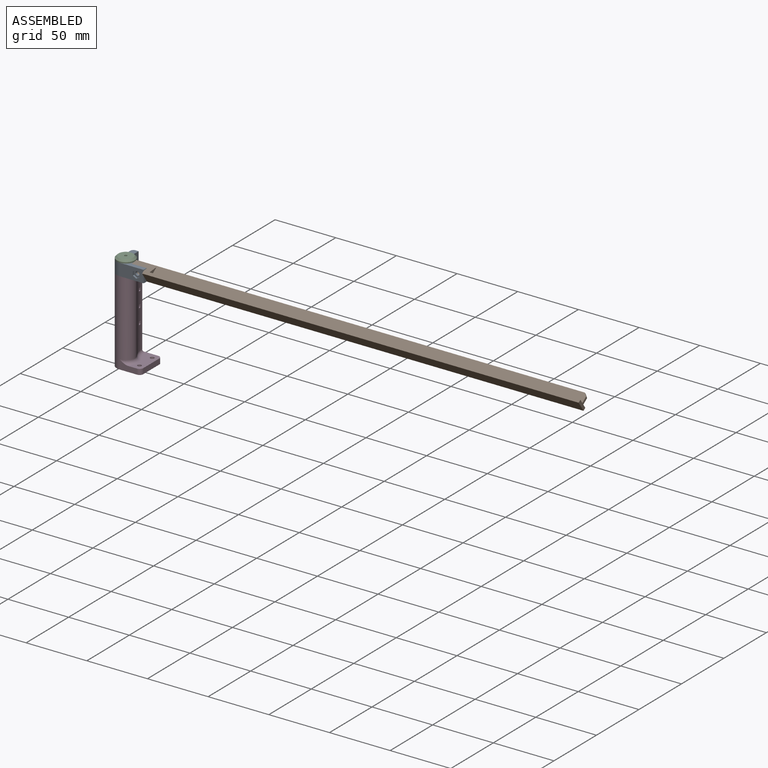
[diagram: assembled view]
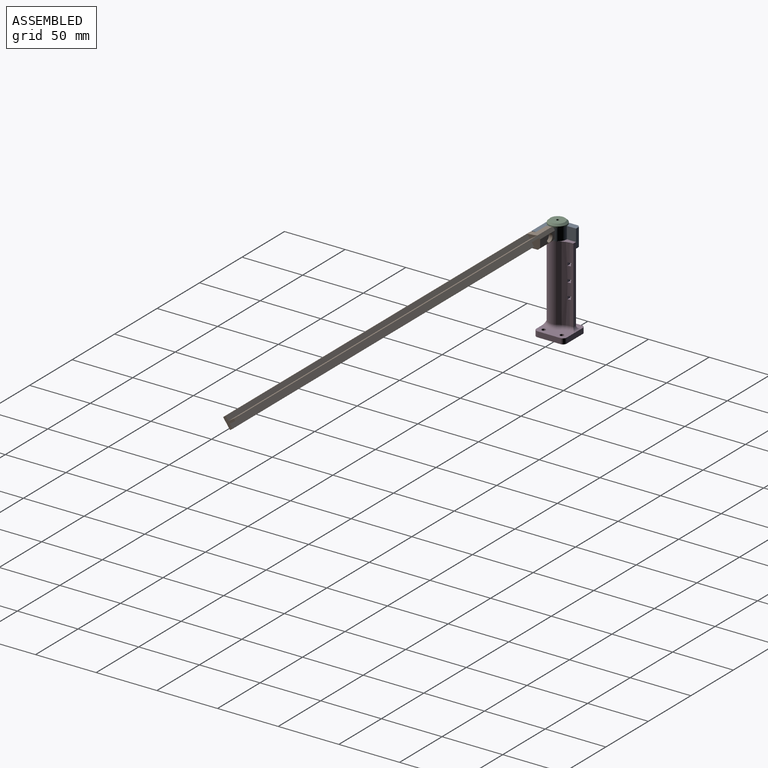
[diagram: assembled view, second angle]
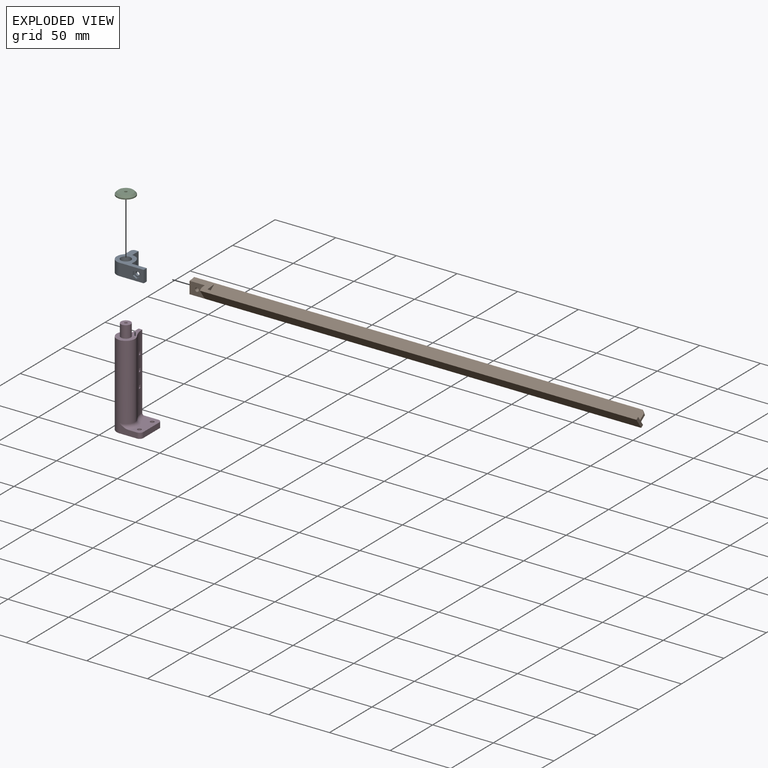
[diagram: exploded view]
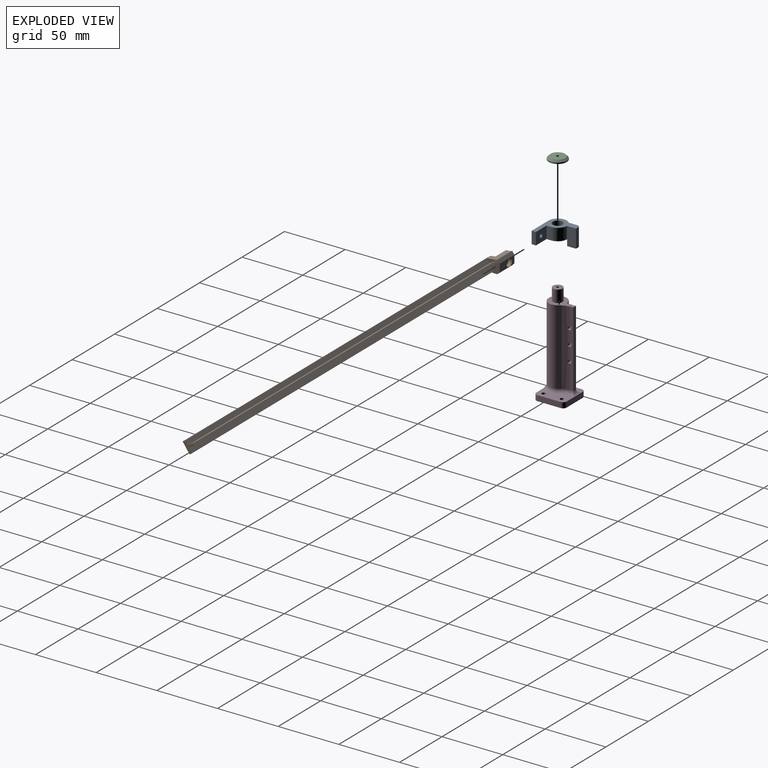
[diagram: exploded view, second angle]
ASSEMBLY  parts=4 mates=3
PART A: 23 faces, bbox 27.5x15x22.5 mm
  f0: plane 27.5x15.2mm, normal (0,1,0), area 178.2mm2, adj f1,f3,f4,f5,f7,f8,f10,f11
  f1: plane 20x10mm, normal (0,0,-1), area 173.8mm2, adj f0,f3,f9,f12,f15,f16,f17,f18
  f2: cylinder r=1.6mm len=3.2mm, axis (0,0,1), area 20.1mm2, adj f10,f14
  f3: cylinder r=7.5mm len=13.09mm, axis (0,1,0), area 180.9mm2, adj f0,f1,f8,f9
  f4: cylinder r=7.5mm len=10mm, axis (0,1,0), area 117.8mm2, adj f0,f5,f9,f11
  f5: plane 15x7.5mm, normal (1,0,0), area 111.5mm2, adj f0,f4,f6,f9,f21,f22
  f6: plane 15x3.5mm, normal (0,0,1), area 52.5mm2, adj f5,f9,f13,f22
  f7: cylinder r=4.2mm len=10mm, axis (0,1,0), area 263.9mm2, adj f0,f9
  f8: plane 15x7.91mm, normal (-1,0,0), area 117.3mm2, adj f0,f3,f9,f13,f21,f22
  f9: plane 27.5x22.5mm, normal (0,-1,0), area 216.5mm2, adj f1,f3,f4,f5,f6,f7,f8,f10
  f10: plane 12.5x10mm, normal (0,0,1), area 117mm2, adj f0,f2,f9,f11,f12
  f11: plane 10x4mm, normal (1,0,0), area 40mm2, adj f0,f4,f9,f10
  f12: plane 10x3.5mm, normal (1,0,0), area 35mm2, adj f0,f1,f9,f10
  f13: plane 15x1.5mm, normal (-0.71,0,0.71), area 31.8mm2, adj f6,f8,f9,f22
  f14: plane 6.35x5.5mm, normal (0,0,-1), area 18.2mm2, adj f2,f15,f16,f17,f18,f19,f20
  f15: plane 2.75x1.59mm, normal (-0.5,-0.87,0), area 4.8mm2, adj f1,f14,f16,f20
  f16: plane 3.18x1.5mm, normal (-1,0,0), area 4.8mm2, adj f1,f14,f15,f17
  f17: plane 2.75x1.59mm, normal (-0.5,0.87,0), area 4.8mm2, adj f1,f14,f16,f18
  f18: plane 2.75x1.59mm, normal (0.5,0.87,0), area 4.8mm2, adj f1,f14,f17,f19
  f19: plane 3.18x1.5mm, normal (1,0,0), area 4.8mm2, adj f1,f14,f18,f20
  f20: plane 2.75x1.59mm, normal (0.5,-0.87,0), area 4.8mm2, adj f1,f14,f15,f19
  f21: cylinder r=7.7mm len=5mm, axis (0,-1,0), area 27.2mm2, adj f0,f5,f8,f22
  f22: plane 9.14x5mm, normal (0,1,0), area 38.3mm2, adj f5,f6,f8,f13,f21
PART B: 22 faces, bbox 372.3x12.9x10.5 mm
  f0: cylinder r=1.6mm len=5.11mm, axis (0,0.57,0.82), area 40.2mm2, adj f17,f19
  f1: plane 355x4mm, normal (0,0,1), area 1420mm2, adj f2,f4,f8,f16
  f2: plane 355x2.5mm, normal (0,1,0), area 887.5mm2, adj f1,f4,f6,f16
  f3: plane 359.8x2.5mm, normal (0,-1,0), area 899.5mm2, adj f4,f5,f6,f13,f15
  f4: plane 10x8mm, normal (1,0,0), area 36mm2, adj f1,f2,f3,f5,f6,f7,f8,f10
  f5: plane 355x4mm, normal (0,0,1), area 1420mm2, adj f3,f4,f7,f11
  f6: plane 359.8x10mm, normal (0,0,-1), area 3598mm2, adj f2,f3,f4,f12,f15
  f7: plane 372.3x8mm, normal (0,-1,0), area 2851.5mm2, adj f4,f5,f9,f10,f11,f13,f18
  f8: plane 355x8mm, normal (0,1,0), area 2836.9mm2, adj f1,f4,f9,f10,f16
  f9: plane 369.8x3.21mm, normal (0,0,1), area 760.5mm2, adj f7,f8,f10,f14,f16,f18
  f10: plane 2.5x2.5mm, normal (0.71,0,0.71), area 7.1mm2, adj f4,f7,f8,f9
  f11: plane 7.16x4mm, normal (1,0,0), area 14.3mm2, adj f5,f7,f13
  f12: plane 17.3x4.1mm, normal (0,0.82,-0.57), area 86.5mm2, adj f6,f16,f17,f18,f21
  f13: plane 17.3x7.16mm, normal (0,-0.87,0.49), area 95.5mm2, adj f3,f7,f11,f15,f17,f18
  f14: plane 17.3x5.17mm, normal (0,0.57,0.82), area 76.4mm2, adj f9,f16,f18,f20,f21
  f15: plane 10x5.74mm, normal (-1,0,0), area 30.9mm2, adj f3,f6,f13,f17
  f16: plane 10.5x6.87mm, normal (1,0,0), area 44.4mm2, adj f1,f2,f8,f9,f12,f14,f21
  f17: plane 12.5x8.19mm, normal (0,-0.57,-0.82), area 117mm2, adj f0,f12,f13,f15,f18
  f18: plane 11.06x10.5mm, normal (-1,0,0), area 68.8mm2, adj f7,f9,f12,f13,f14,f17,f21
  f19: plane 6.5x5.32mm, normal (0,0.57,0.82), area 25.1mm2, adj f0,f20
  f20: cylinder r=3.25mm len=7.05mm, axis (0,0.57,0.82), area 60.8mm2, adj f14,f19,f21
  f21: plane 17.3x2.79mm, normal (0,0.98,0.17), area 48.3mm2, adj f12,f14,f16,f18,f20
PART C: 5 faces, bbox 15x15x2.5 mm
  f0: cylinder r=7.5mm len=15mm, axis (0,0,-1), area 47.1mm2, adj f2,f3
  f1: plane 12x12mm, normal (0,0,1), area 109.3mm2, adj f3,f4
  f2: plane 15x15mm, normal (0,0,-1), area 172.9mm2, adj f0,f4
  f3: cone r=6mm half-angle=45deg, axis (0,0,-1), area 90mm2, adj f0,f1
  f4: cylinder r=1.1mm len=2.5mm, axis (0,0,-1), area 17.3mm2, adj f1,f2
PART D: 38 faces, bbox 31.2x31.9x79.5 mm
  f0: plane 25x11.5mm, normal (0,0,1), area 210mm2, adj f4,f5,f6,f7,f9,f15,f16,f36
  f1: plane 62x7.5mm, normal (-1,0,0), area 446.2mm2, adj f3,f12,f18,f19,f20,f21,f22,f23
  f2: cylinder r=19.75mm len=62mm, axis (0,0,-1), area 694.8mm2, adj f3,f12,f18,f19,f20,f21,f22,f23
  f3: cylinder r=7.5mm len=69.5mm, axis (0,0,-1), area 2550.7mm2, adj f1,f2,f4,f8,f11,f12,f33,f37
  f4: plane 14.5x7.5mm, normal (0,-1,0), area 73.4mm2, adj f0,f3,f11,f15,f37
  f5: plane 19x4.5mm, normal (1,0,0), area 85.5mm2, adj f0,f11,f15,f16
  f6: plane 19x4.5mm, normal (0,1,0), area 85.5mm2, adj f0,f10,f11,f16,f17,f35
  f7: cylinder r=1.6mm len=4.5mm, axis (0,0,-1), area 45.2mm2, adj f0,f11
  f8: plane 14.5x7.5mm, normal (-1,0,0), area 73.4mm2, adj f3,f10,f11,f17,f33
  f9: cylinder r=1.6mm len=4.5mm, axis (0,0,-1), area 45.2mm2, adj f0,f11
  f10: plane 10.15x4.5mm, normal (0,0,1), area 36.5mm2, adj f6,f8,f17,f33,f34
  f11: plane 25x25mm, normal (0,0,-1), area 591mm2, adj f3,f4,f5,f6,f7,f8,f9,f15
  f12: plane 22.5x15mm, normal (0,0,1), area 155.6mm2, adj f1,f2,f3,f13,f18
  f13: cylinder r=4mm len=10mm, axis (0,0,-1), area 251.3mm2, adj f12,f14
  f14: plane 8x8mm, normal (0,0,1), area 46.5mm2, adj f13,f31
  f15: cylinder r=3mm len=4.5mm, axis (0,0,1), area 21.2mm2, adj f0,f4,f5,f11
  f16: cylinder r=3mm len=4.5mm, axis (0,0,-1), area 21.2mm2, adj f0,f5,f6,f11
  f17: cylinder r=3mm len=4.5mm, axis (0,0,1), area 21.2mm2, adj f6,f8,f10,f11
  f18: plane 62.04x3mm, normal (0,1,0), area 186.1mm2, adj f1,f2,f12,f34,f35,f36
  f19: plane 3.52x2.5mm, normal (0,1,0), area 8.8mm2, adj f1,f2,f20,f22
  f20: plane 3.52x2.5mm, normal (0,0,-1), area 8.2mm2, adj f1,f2,f19,f21
  f21: plane 3.1x2.5mm, normal (0,-1,0), area 7.8mm2, adj f1,f2,f20,f22
  f22: plane 3.52x2.5mm, normal (0,0,1), area 8.2mm2, adj f1,f2,f19,f21
  f23: plane 3.52x2.5mm, normal (0,1,0), area 8.8mm2, adj f1,f2,f24,f26
  f24: plane 3.52x2.5mm, normal (0,0,-1), area 8.2mm2, adj f1,f2,f23,f25
  f25: plane 3.1x2.5mm, normal (0,-1,0), area 7.8mm2, adj f1,f2,f24,f26
  f26: plane 3.52x2.5mm, normal (0,0,1), area 8.2mm2, adj f1,f2,f23,f25
  f27: plane 3.52x2.5mm, normal (0,1,0), area 8.8mm2, adj f1,f2,f28,f30
  f28: plane 3.52x2.5mm, normal (0,0,-1), area 8.2mm2, adj f1,f2,f27,f29
  f29: plane 3.1x2.5mm, normal (0,-1,0), area 7.8mm2, adj f1,f2,f28,f30
  f30: plane 3.52x2.5mm, normal (0,0,1), area 8.2mm2, adj f1,f2,f27,f29
  f31: cylinder r=1.1mm len=20mm, axis (0,0,1), area 138.2mm2, adj f14,f32
  f32: plane 2.2x2.2mm, normal (0,0,1), area 3.8mm2, adj f31
  f33: torus R=10.5mm, axis (0,0,1), area 39.8mm2, adj f3,f8,f10,f34
  f34: cylinder r=3mm len=10mm, axis (0,-1,0), area 35.5mm2, adj f1,f10,f18,f33,f35
  f35: cylinder r=3mm len=9.19mm, axis (1,0,0), area 20.8mm2, adj f6,f18,f34,f36
  f36: torus R=16.75mm, axis (0,0,1), area 56mm2, adj f0,f2,f18,f35,f37
  f37: torus R=10.5mm, axis (0,0,1), area 68.6mm2, adj f0,f3,f4,f36
PLACE A rot(axis=(-1,0,0),90deg) t=(-32.95,7.24,77.06)mm
PLACE B rot(axis=(-1,0,0),55deg) t=(-7.95,3.24,77.06)mm
PLACE C t=(-32.95,7.24,87.06)mm
PLACE D t=(-15.45,-0.26,7.56)mm fixed
MATE fastened C.f0 <-> A.f3  axis (0,0,-1) through (-32.95,7.24,87.06)mm
MATE revolute A.f7 <-> D.f3  axis (0,0,-1) through (-32.95,7.24,77.06)mm
MATE parallel B.f18 <-> A.f11  axis (-1,0,0) through (-25.25,6.62,82.26)mm
